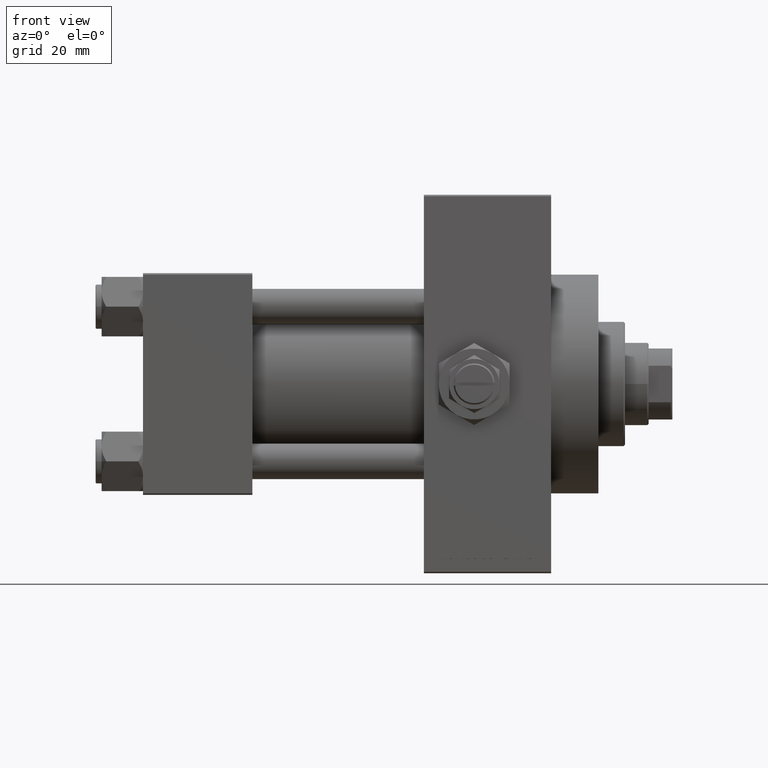
[diagram: clean part render]
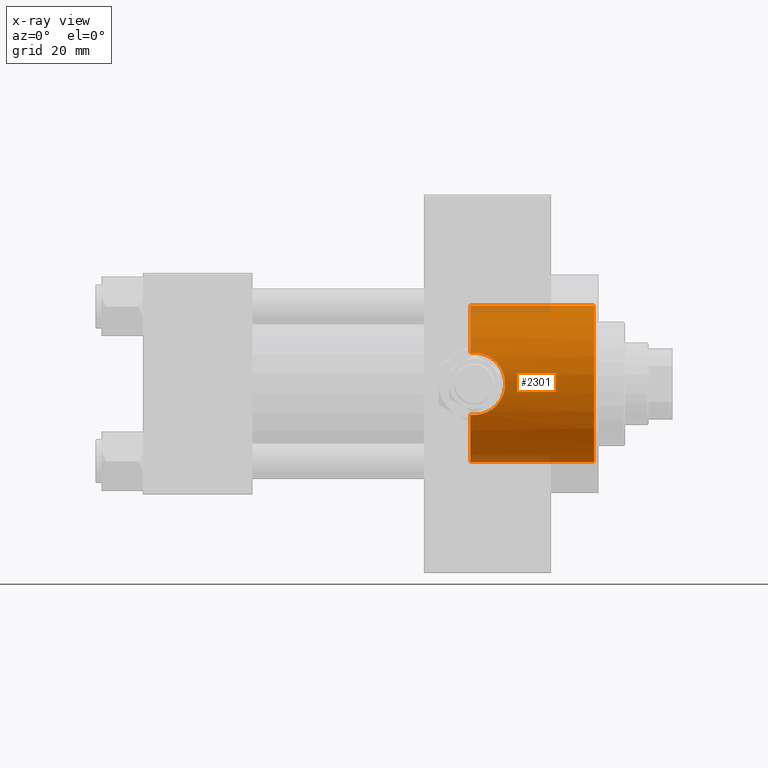
[diagram: x-ray — body ghosted, one internal face saturated and labeled with its STEP entity id]
A machine part, front view, then the same camera in x-ray: the body is ghosted and one INTERNAL B-rep face — a face not visible from any outside direction — is saturated and labeled: STEP entity #2301.
In plain terms, the highlighted cylindrical surface (partial cylindrical patch) has radius 26.5 mm, axis along (1, 0, 0).
Its self-contained STEP definition (entity closure, byte-faithful):
#698 = CYLINDRICAL_SURFACE ( 'NONE', #32380, 26.50000000000000355 ) ;
#927 = CARTESIAN_POINT ( 'NONE',  ( 110.7400000000000375, -24.37226292324945476, 10.40398000767014786 ) ) ;
#994 = DIRECTION ( 'NONE',  ( 1.000000000000000000, -0.000000000000000000, -0.000000000000000000 ) ) ;
#1199 = CARTESIAN_POINT ( 'NONE',  ( 112.0000000000000000, -24.33967132070604222, -10.47999999999999865 ) ) ;
#1480 = EDGE_CURVE ( 'NONE', #30043, #34724, #36315, .T. ) ;
#2301 = ADVANCED_FACE ( 'NONE', ( #37084 ), #698, .F. ) ;
#2323 = CARTESIAN_POINT ( 'NONE',  ( 118.3864792908362773, -25.16230905708522414, 8.316254619809553716 ) ) ;
#2477 = EDGE_CURVE ( 'NONE', #39513, #26043, #20499, .T. ) ;
#2565 = CARTESIAN_POINT ( 'NONE',  ( 118.1110651716822275, -25.09360970262138224, 8.520611273842996880 ) ) ;
#2648 = ORIENTED_EDGE ( 'NONE', *, *, #34824, .T. ) ;
#2801 = CARTESIAN_POINT ( 'NONE',  ( 116.3489237122697091, -24.72318467201152714, -9.541179571695423078 ) ) ;
#3032 = DIRECTION ( 'NONE',  ( 1.000000000000000000, -0.000000000000000000, -0.000000000000000000 ) ) ;
#3039 = CARTESIAN_POINT ( 'NONE',  ( 118.9147507852791676, -25.30155050139244111, 7.882476147205595751 ) ) ;
#3646 = ORIENTED_EDGE ( 'NONE', *, *, #44492, .F. ) ;
#3679 = DIRECTION ( 'NONE',  ( 1.000000000000000000, 0.000000000000000000, 0.000000000000000000 ) ) ;
#3834 = B_SPLINE_CURVE_WITH_KNOTS ( 'NONE', 3,
 ( #6478, #13932, #6716, #32791 ),
 .UNSPECIFIED., .F., .F.,
 ( 4, 4 ),
 ( 0.03437190755806011910, 0.03561776921873218565 ),
 .UNSPECIFIED. ) ;
#4862 = VERTEX_POINT ( 'NONE', #17744 ) ;
#6079 = ORIENTED_EDGE ( 'NONE', *, *, #14703, .T. ) ;
#6304 = CARTESIAN_POINT ( 'NONE',  ( 121.5385175848662982, -26.14168889184968947, 4.354785931857526826 ) ) ;
#6478 = CARTESIAN_POINT ( 'NONE',  ( 112.0000000000000000, -24.33967132070604222, 10.48000000000000220 ) ) ;
#6716 = CARTESIAN_POINT ( 'NONE',  ( 111.1580741051582635, -24.35064928096444348, 10.45461191700782422 ) ) ;
#6786 = CARTESIAN_POINT ( 'NONE',  ( 122.1391112229688076, -26.36675217432884466, -2.738755341944245192 ) ) ;
#7021 = CARTESIAN_POINT ( 'NONE',  ( 113.3839948142214524, -24.36973996242157625, 10.41091756284553504 ) ) ;
#7260 = CARTESIAN_POINT ( 'NONE',  ( 121.9389570606566053, -26.28956209411557765, -3.395175965175880606 ) ) ;
#7721 = DIRECTION ( 'NONE',  ( 1.000000000000000000, 0.000000000000000000, 0.000000000000000000 ) ) ;
#7930 = CARTESIAN_POINT ( 'NONE',  ( 111.5811236364006049, -24.33967132070604222, -10.47999999999999865 ) ) ;
#8475 = LINE ( 'NONE', #42512, #11452 ) ;
#9910 = DIRECTION ( 'NONE',  ( 0.000000000000000000, 0.000000000000000000, -1.000000000000000000 ) ) ;
#10039 = CARTESIAN_POINT ( 'NONE',  ( 114.7286532048194516, -24.48994387988090082, 10.12445329003761252 ) ) ;
#10153 = CARTESIAN_POINT ( 'NONE',  ( 110.7400000000000375, 0.000000000000000000, 0.000000000000000000 ) ) ;
#10279 = CARTESIAN_POINT ( 'NONE',  ( 122.4114040688938587, -26.47265107862981992, 1.382412405478188999 ) ) ;
#10527 = CARTESIAN_POINT ( 'NONE',  ( 119.8811664359166400, -25.58300917221409421, -6.916171625962136638 ) ) ;
#10769 = CARTESIAN_POINT ( 'NONE',  ( 119.8850942087585736, -25.58093385762820660, 6.936447548980011035 ) ) ;
#10999 = CARTESIAN_POINT ( 'NONE',  ( 121.0816778311290136, -25.97633853132261450, -5.273786452924785983 ) ) ;
#11034 = DIRECTION ( 'NONE',  ( 1.000000000000000000, -0.000000000000000000, -0.000000000000000000 ) ) ;
#11452 = VECTOR ( 'NONE', #994, 1000.000000000000000 ) ;
#13037 = CARTESIAN_POINT ( 'NONE',  ( 112.6904960883777846, -24.33967132070604222, -10.48000000000000043 ) ) ;
#13759 = CARTESIAN_POINT ( 'NONE',  ( 121.4057128516256370, -26.09263577897064224, -4.673612418766447618 ) ) ;
#13932 = CARTESIAN_POINT ( 'NONE',  ( 111.5796744023297293, -24.33967132070604222, 10.48000000000000220 ) ) ;
#13999 = CARTESIAN_POINT ( 'NONE',  ( 120.5155153844950462, -25.78569419426082021, -6.118106053452859960 ) ) ;
#14236 = CARTESIAN_POINT ( 'NONE',  ( 122.4800680225664280, -26.50002690099941205, -0.3451042088078361547 ) ) ;
#14472 = CARTESIAN_POINT ( 'NONE',  ( 117.2635990777562256, -24.90054338428140568, -9.068796382691635571 ) ) ;
#14703 = EDGE_CURVE ( 'NONE', #16706, #4862, #45723, .T. ) ;
#14707 = CARTESIAN_POINT ( 'NONE',  ( 122.2075249541714896, -26.39335609204158573, 2.399236127628239235 ) ) ;
#16706 = VERTEX_POINT ( 'NONE', #30624 ) ;
#17455 = VECTOR ( 'NONE', #11034, 1000.000000000000000 ) ;
#17477 = CARTESIAN_POINT ( 'NONE',  ( 112.0000000000000000, -24.33967132070604222, 10.48000000000000220 ) ) ;
#17712 = CARTESIAN_POINT ( 'NONE',  ( 115.7173844672076370, -24.61993612039164248, 9.804529592362731805 ) ) ;
#17744 = CARTESIAN_POINT ( 'NONE',  ( 112.0000000000000000, -24.33967132070604222, 10.48000000000000220 ) ) ;
#17958 = CARTESIAN_POINT ( 'NONE',  ( 119.1663633815065140, -25.37171319999174912, 7.654298772871992895 ) ) ;
#18199 = CARTESIAN_POINT ( 'NONE',  ( 116.6659000583122605, -24.77500862834706652, 9.408993987884901600 ) ) ;
#18434 = CARTESIAN_POINT ( 'NONE',  ( 122.1219222710722505, -26.36027543327034905, 2.738055544399104146 ) ) ;
#18892 = CARTESIAN_POINT ( 'NONE',  ( 110.7400000000000375, 0.000000000000000000, 0.000000000000000000 ) ) ;
#20207 = VERTEX_POINT ( 'NONE', #45806 ) ;
#20499 = CIRCLE ( 'NONE', #45880, 26.50000000000000355 ) ;
#21327 = DIRECTION ( 'NONE',  ( 1.000000000000000000, 0.000000000000000000, 0.000000000000000000 ) ) ;
#21456 = CARTESIAN_POINT ( 'NONE',  ( 121.3916535229813576, -26.08830885934473542, 4.663043711798784408 ) ) ;
#21693 = CARTESIAN_POINT ( 'NONE',  ( 117.2636119660474066, -24.89625137302610369, 9.087734872939172703 ) ) ;
#21937 = CARTESIAN_POINT ( 'NONE',  ( 121.8022638174866046, -26.23907308479208922, 3.723318718764354163 ) ) ;
#22564 = CARTESIAN_POINT ( 'NONE',  ( 152.5000000000000853, 0.000000000000000000, 0.000000000000000000 ) ) ;
#22837 = ORIENTED_EDGE ( 'NONE', *, *, #45537, .T. ) ;
#23666 = AXIS2_PLACEMENT_3D ( 'NONE', #18892, #7721, #38029 ) ;
#23669 = EDGE_LOOP ( 'NONE', ( #43641, #37396, #27218, #3646, #30545, #22837, #6079, #2648 ) ) ;
#23831 = CARTESIAN_POINT ( 'NONE',  ( 111.1611364518797984, -24.35049096341792918, -10.45498279016081611 ) ) ;
#24520 = CARTESIAN_POINT ( 'NONE',  ( 152.5000000000000853, 3.245314017740486554E-15, 26.50000000000000355 ) ) ;
#25667 = CARTESIAN_POINT ( 'NONE',  ( 122.4626037639855838, -26.49310609510639836, -0.6963515910539334053 ) ) ;
#25699 = LINE ( 'NONE', #32661, #17455 ) ;
#25908 = CARTESIAN_POINT ( 'NONE',  ( 118.9276451403627135, -25.30216499957183984, -7.893159106980520257 ) ) ;
#26043 = VERTEX_POINT ( 'NONE', #927 ) ;
#26067 = DIRECTION ( 'NONE',  ( 0.000000000000000000, 0.000000000000000000, -1.000000000000000000 ) ) ;
#26148 = CARTESIAN_POINT ( 'NONE',  ( 112.6982936874238703, -24.33967132070603867, 10.47999999999999865 ) ) ;
#26805 = CARTESIAN_POINT ( 'NONE',  ( 110.7400000000000375, -24.37226292324945831, -10.40398000767014430 ) ) ;
#27218 = ORIENTED_EDGE ( 'NONE', *, *, #1480, .T. ) ;
#29141 = CARTESIAN_POINT ( 'NONE',  ( 122.3935590552673744, -26.46591511510092687, -1.387412420731371165 ) ) ;
#29383 = CARTESIAN_POINT ( 'NONE',  ( 117.5577538920436780, -24.96463143003449403, -8.891425016462852327 ) ) ;
#29617 = CARTESIAN_POINT ( 'NONE',  ( 122.3421836049517140, -26.44572692659851754, -1.728475508984260278 ) ) ;
#29858 = CARTESIAN_POINT ( 'NONE',  ( 118.4049404352972061, -25.16229795609818964, -8.322848467437539810 ) ) ;
#30043 = VERTEX_POINT ( 'NONE', #24520 ) ;
#30545 = ORIENTED_EDGE ( 'NONE', *, *, #33512, .F. ) ;
#30624 = CARTESIAN_POINT ( 'NONE',  ( 112.0000000000000000, -24.33967132070604222, -10.47999999999999865 ) ) ;
#31023 = CARTESIAN_POINT ( 'NONE',  ( 110.7400000000000375, 0.000000000000000000, 0.000000000000000000 ) ) ;
#32380 = AXIS2_PLACEMENT_3D ( 'NONE', #31023, #3032, #36835 ) ;
#32661 = CARTESIAN_POINT ( 'NONE',  ( 110.7400000000000375, 3.245314017740486554E-15, 26.50000000000000355 ) ) ;
#32791 = CARTESIAN_POINT ( 'NONE',  ( 110.7400000000000375, -24.37226292324945476, 10.40398000767014786 ) ) ;
#32861 = CARTESIAN_POINT ( 'NONE',  ( 115.3904700717597649, -24.57248644795726022, 9.922439993611771314 ) ) ;
#33512 = EDGE_CURVE ( 'NONE', #20207, #40654, #40455, .T. ) ;
#33575 = CARTESIAN_POINT ( 'NONE',  ( 121.9191483855533704, -26.28308039691835418, 3.400110870430098853 ) ) ;
#34724 = VERTEX_POINT ( 'NONE', #39041 ) ;
#34824 = EDGE_CURVE ( 'NONE', #4862, #26043, #3834, .T. ) ;
#35630 = CARTESIAN_POINT ( 'NONE',  ( 112.0000000000000000, -24.33967132070604222, -10.47999999999999865 ) ) ;
#36315 = CIRCLE ( 'NONE', #42669, 26.50000000000000355 ) ;
#36361 = CARTESIAN_POINT ( 'NONE',  ( 121.0679913760332198, -25.97354752128884314, 5.264851845784580320 ) ) ;
#36611 = CARTESIAN_POINT ( 'NONE',  ( 120.8904987776702171, -25.91192981801191664, 5.559420023815757617 ) ) ;
#36835 = DIRECTION ( 'NONE',  ( 0.000000000000000000, 0.000000000000000000, -1.000000000000000000 ) ) ;
#37084 = FACE_OUTER_BOUND ( 'NONE', #23669, .T. ) ;
#37092 = CARTESIAN_POINT ( 'NONE',  ( 122.4798633477534509, -26.49994595790488106, 0.6963870350870486892 ) ) ;
#37396 = ORIENTED_EDGE ( 'NONE', *, *, #38426, .T. ) ;
#38029 = DIRECTION ( 'NONE',  ( 0.000000000000000000, 0.000000000000000000, -1.000000000000000000 ) ) ;
#38426 = EDGE_CURVE ( 'NONE', #39513, #30043, #25699, .T. ) ;
#39041 = CARTESIAN_POINT ( 'NONE',  ( 152.5000000000000853, 0.000000000000000000, -26.50000000000000355 ) ) ;
#39513 = VERTEX_POINT ( 'NONE', #41832 ) ;
#39615 = CARTESIAN_POINT ( 'NONE',  ( 113.3786097457406044, -24.36915941385104745, -10.41231194222669387 ) ) ;
#40339 = CARTESIAN_POINT ( 'NONE',  ( 120.3132647636415271, -25.71940794313460898, -6.390292897823913520 ) ) ;
#40455 = CIRCLE ( 'NONE', #23666, 26.50000000000000355 ) ;
#40654 = VERTEX_POINT ( 'NONE', #42162 ) ;
#40822 = CARTESIAN_POINT ( 'NONE',  ( 114.7461877943153752, -24.48462605612510856, -10.13781324604279099 ) ) ;
#41058 = CARTESIAN_POINT ( 'NONE',  ( 114.3947302122627718, -24.45488967133337965, 10.20851256290626985 ) ) ;
#41297 = CARTESIAN_POINT ( 'NONE',  ( 115.4024368383431352, -24.56844862672225815, -9.935854460437969493 ) ) ;
#41832 = CARTESIAN_POINT ( 'NONE',  ( 110.7400000000000375, 3.245314017740486554E-15, 26.50000000000000355 ) ) ;
#42162 = CARTESIAN_POINT ( 'NONE',  ( 110.7400000000000375, 0.000000000000000000, -26.50000000000000355 ) ) ;
#42512 = CARTESIAN_POINT ( 'NONE',  ( 110.7400000000000375, 0.000000000000000000, -26.50000000000000355 ) ) ;
#42669 = AXIS2_PLACEMENT_3D ( 'NONE', #22564, #3679, #26067 ) ;
#43401 = B_SPLINE_CURVE_WITH_KNOTS ( 'NONE', 3,
 ( #26805, #23831, #7930, #1199 ),
 .UNSPECIFIED., .F., .F.,
 ( 4, 4 ),
 ( 0.000000000000000000, 0.001255586767787659347 ),
 .UNSPECIFIED. ) ;
#43641 = ORIENTED_EDGE ( 'NONE', *, *, #2477, .F. ) ;
#44492 = EDGE_CURVE ( 'NONE', #40654, #34724, #8475, .T. ) ;
#44543 = CARTESIAN_POINT ( 'NONE',  ( 116.6580558779861150, -24.77960996754317335, -9.394203453174529983 ) ) ;
#44776 = CARTESIAN_POINT ( 'NONE',  ( 120.3165002292777785, -25.71874665637611201, 6.413821170274212946 ) ) ;
#45014 = CARTESIAN_POINT ( 'NONE',  ( 119.6501220615578234, -25.51256335955728716, -7.170912732211446539 ) ) ;
#45537 = EDGE_CURVE ( 'NONE', #20207, #16706, #43401, .T. ) ;
#45723 = B_SPLINE_CURVE_WITH_KNOTS ( 'NONE', 3,
 ( #35630, #13037, #39615, #40822, #41297, #2801, #44543, #14472, #29383, #29858, #25908, #45014, #10527, #40339, #13999, #10999, #13759, #7260, #6786, #29617, #29141, #25667, #14236, #37092, #10279, #14707, #18434, #33575, #21937, #6304, #21456, #36361, #36611, #44776, #10769, #17958, #3039, #2323, #2565, #21693, #18199, #17712, #32861, #10039, #41058, #7021, #26148, #17477 ),
 .UNSPECIFIED., .F., .F.,
 ( 4, 2, 2, 2, 2, 2, 2, 2, 2, 2, 2, 2, 2, 2, 2, 2, 2, 2, 2, 2, 2, 2, 2, 4 ),
 ( 0.001255586767787659347, 0.003325356817179700875, 0.005395126866571742404, 0.006430011891267743869, 0.007464896915963744467, 0.009534666965355782092, 0.01056955199005181305, 0.01160443701474784574, 0.01367420706413988857, 0.01574397711353192966, 0.01677886213822795194, 0.01781374716292397076, 0.01988351721231601532, 0.02091840223701203413, 0.02195328726170805295, 0.02298817228640406482, 0.02402305731110008363, 0.02609282736049212126, 0.02712771238518812619, 0.02816259740988413460, 0.03023236745927610630, 0.03126725248397210777, 0.03230213750866811617, 0.03437190755806011910 ),
 .UNSPECIFIED. ) ;
#45806 = CARTESIAN_POINT ( 'NONE',  ( 110.7400000000000375, -24.37226292324945831, -10.40398000767014430 ) ) ;
#45880 = AXIS2_PLACEMENT_3D ( 'NONE', #10153, #21327, #9910 ) ;